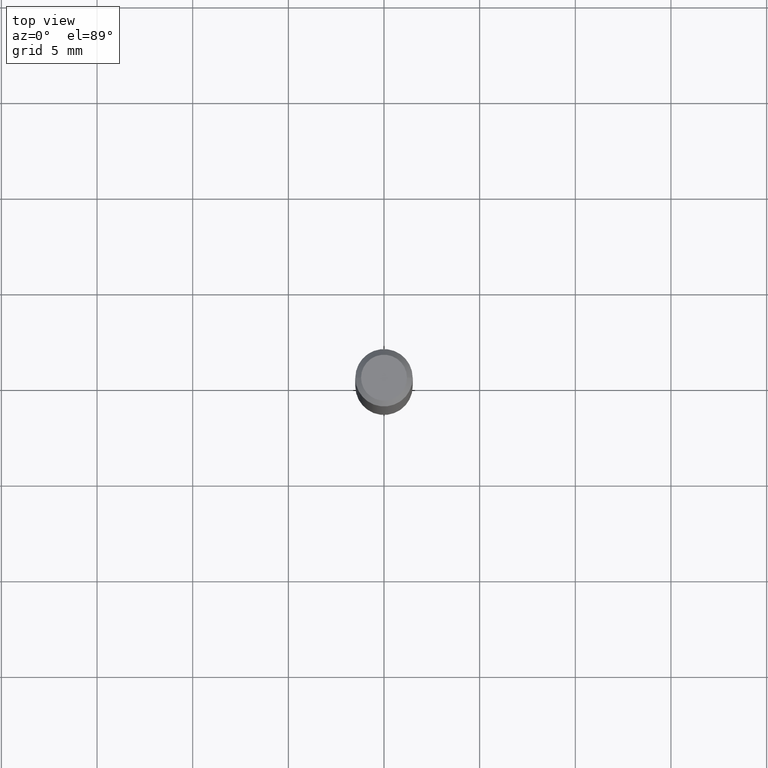
[diagram: clean part render]
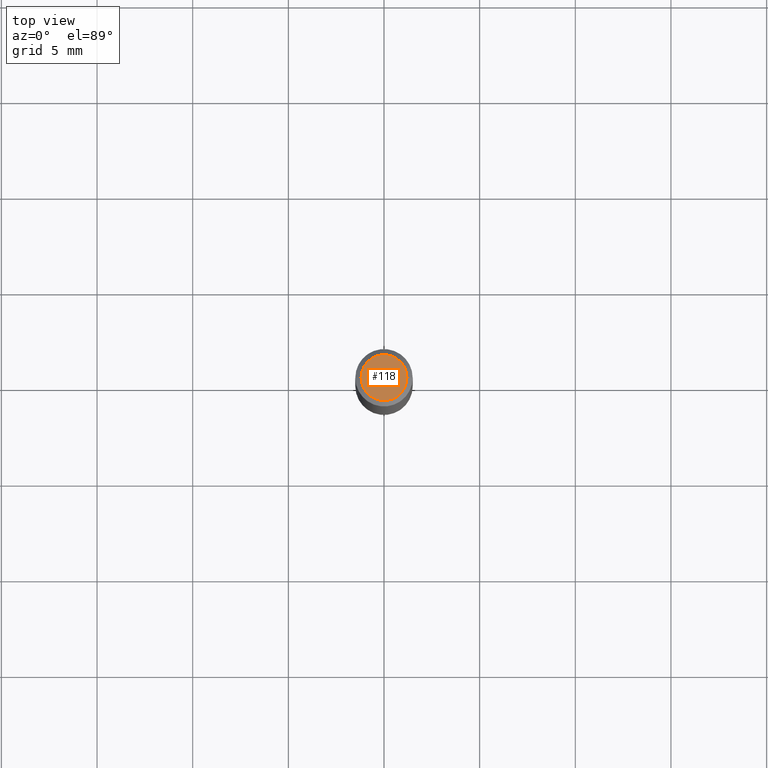
[diagram: same view with one face highlighted and labeled with its STEP entity id]
A machine part, top view. The second image highlights one B-rep face of the part: STEP entity #118.
In plain terms, the highlighted planar face has unit normal (0, -0, -1).
Its self-contained STEP definition (entity closure, byte-faithful):
#72 = ORIENTED_EDGE ( 'NONE', *, *, #442, .T. ) ;
#106 = DIRECTION ( 'NONE',  ( -2.445468806185136597E-29, 3.491481338843145583E-15, 1.000000000000000000 ) ) ;
#117 = DIRECTION ( 'NONE',  ( -2.445468806185136597E-29, 3.491481338843145583E-15, 1.000000000000000000 ) ) ;
#118 = ADVANCED_FACE ( 'NONE', ( #168 ), #451, .F. ) ;
#126 = AXIS2_PLACEMENT_3D ( 'NONE', #160, #117, #262 ) ;
#137 = CARTESIAN_POINT ( 'NONE',  ( 8.265746106709734507E-48, -1.180129479067563789E-33, -3.380025165646692144E-19 ) ) ;
#138 = AXIS2_PLACEMENT_3D ( 'NONE', #137, #106, #312 ) ;
#140 = EDGE_CURVE ( 'NONE', #394, #467, #190, .T. ) ;
#151 = CIRCLE ( 'NONE', #138, 0.04724000000000000421 ) ;
#156 = EDGE_LOOP ( 'NONE', ( #72, #206 ) ) ;
#160 = CARTESIAN_POINT ( 'NONE',  ( 8.265746106709734507E-48, -1.180129479067563789E-33, -3.380025165646692144E-19 ) ) ;
#168 = FACE_OUTER_BOUND ( 'NONE', #156, .T. ) ;
#185 = CARTESIAN_POINT ( 'NONE',  ( 0.04724000000000000421, -3.852183633974369838E-16, -3.380025165621689721E-19 ) ) ;
#190 = CIRCLE ( 'NONE', #126, 0.04724000000000000421 ) ;
#196 = DIRECTION ( 'NONE',  ( -1.000000000000000000, 6.982962677686265922E-15, -4.876176775795935793E-29 ) ) ;
#197 = DIRECTION ( 'NONE',  ( 2.438088387897960049E-29, -3.491481338843145188E-15, -1.000000000000000000 ) ) ;
#206 = ORIENTED_EDGE ( 'NONE', *, *, #140, .T. ) ;
#249 = CARTESIAN_POINT ( 'NONE',  ( -0.04724000000000000421, 3.504923541997677355E-16, -3.380025165670481712E-19 ) ) ;
#262 = DIRECTION ( 'NONE',  ( 1.000000000000000000, -6.982962677686266711E-15, 4.876185090822587894E-29 ) ) ;
#312 = DIRECTION ( 'NONE',  ( 1.000000000000000000, -6.982962677686266711E-15, 4.876185090822587894E-29 ) ) ;
#394 = VERTEX_POINT ( 'NONE', #185 ) ;
#407 = CARTESIAN_POINT ( 'NONE',  ( 4.132873053354867254E-48, -5.900647395337818946E-34, -1.690012582823346072E-19 ) ) ;
#442 = EDGE_CURVE ( 'NONE', #467, #394, #151, .T. ) ;
#446 = AXIS2_PLACEMENT_3D ( 'NONE', #407, #197, #196 ) ;
#451 = PLANE ( 'NONE',  #446 ) ;
#467 = VERTEX_POINT ( 'NONE', #249 ) ;